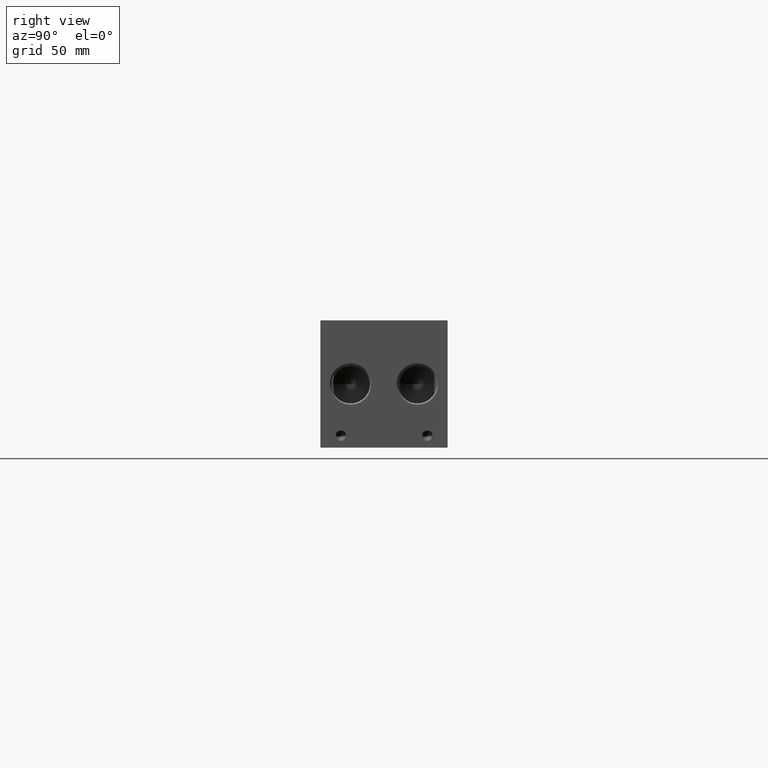
[diagram: clean part render]
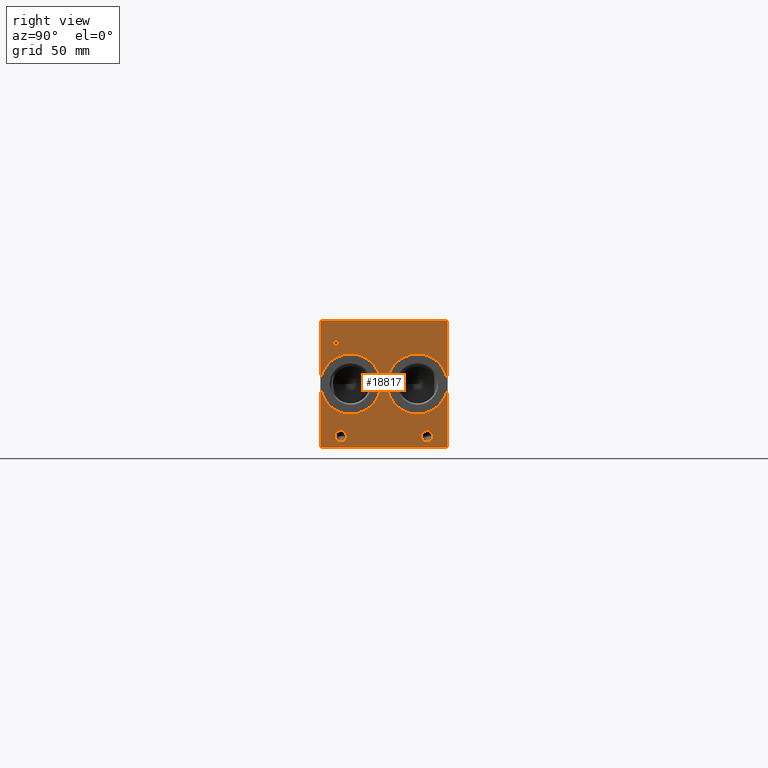
[diagram: same view with one face highlighted and labeled with its STEP entity id]
A machine part, right view. The second image highlights one B-rep face of the part: STEP entity #18817.
In plain terms, the highlighted planar face has unit normal (1, 0, 0).
Its self-contained STEP definition (entity closure, byte-faithful):
#308=CIRCLE('',#19861,3.9624);
#309=CIRCLE('',#19862,3.9624);
#310=CIRCLE('',#19863,3.9624);
#311=CIRCLE('',#19864,3.9624);
#312=CIRCLE('',#19865,21.0185);
#313=CIRCLE('',#19866,21.0185);
#314=CIRCLE('',#19867,21.0185);
#315=CIRCLE('',#19868,21.0185);
#952=FACE_BOUND('',#2953,.T.);
#953=FACE_BOUND('',#2954,.T.);
#954=FACE_BOUND('',#2955,.T.);
#955=FACE_BOUND('',#2956,.T.);
#956=FACE_BOUND('',#2957,.T.);
#957=FACE_BOUND('',#2958,.T.);
#1161=B_SPLINE_CURVE_WITH_KNOTS('',2,(#25934,#25935,#25936,#25937),
 .UNSPECIFIED.,.F.,.F.,(3,1,3),(0.,1.,2.),.UNSPECIFIED.);
#1163=B_SPLINE_CURVE_WITH_KNOTS('',2,(#25955,#25956,#25957,#25958),
 .UNSPECIFIED.,.F.,.F.,(3,1,3),(0.,1.,2.),.UNSPECIFIED.);
#1165=B_SPLINE_CURVE_WITH_KNOTS('',2,(#26004,#26005,#26006,#26007),
 .UNSPECIFIED.,.F.,.F.,(3,1,3),(0.,1.,2.),.UNSPECIFIED.);
#1167=B_SPLINE_CURVE_WITH_KNOTS('',2,(#26022,#26023,#26024,#26025),
 .UNSPECIFIED.,.F.,.F.,(3,1,3),(0.,1.,2.),.UNSPECIFIED.);
#1914=FACE_OUTER_BOUND('',#2952,.T.);
#2952=EDGE_LOOP('',(#12241,#12242,#12243,#12244));
#2953=EDGE_LOOP('',(#12245,#12246,#12247,#12248,#12249,#12250,#12251,#12252));
#2954=EDGE_LOOP('',(#12253,#12254));
#2955=EDGE_LOOP('',(#12255,#12256));
#2956=EDGE_LOOP('',(#12257,#12258));
#2957=EDGE_LOOP('',(#12259,#12260));
#2958=EDGE_LOOP('',(#12261,#12262,#12263,#12264,#12265,#12266,#12267,#12268,
#12269));
#4164=LINE('',#25784,#5795);
#4168=LINE('',#25792,#5799);
#4171=LINE('',#25798,#5802);
#4174=LINE('',#25804,#5805);
#4177=LINE('',#25810,#5808);
#4180=LINE('',#25816,#5811);
#4183=LINE('',#25822,#5814);
#4186=LINE('',#25827,#5817);
#4204=LINE('',#25967,#5835);
#4207=LINE('',#25973,#5838);
#4210=LINE('',#25979,#5841);
#4213=LINE('',#25985,#5844);
#4216=LINE('',#25991,#5847);
#4220=LINE('',#26034,#5851);
#4221=LINE('',#26036,#5852);
#4222=LINE('',#26038,#5853);
#4223=LINE('',#26039,#5854);
#5795=VECTOR('',#21281,10.);
#5799=VECTOR('',#21287,10.);
#5802=VECTOR('',#21292,10.);
#5805=VECTOR('',#21297,10.);
#5808=VECTOR('',#21302,10.);
#5811=VECTOR('',#21307,10.);
#5814=VECTOR('',#21312,10.);
#5817=VECTOR('',#21317,10.);
#5835=VECTOR('',#21345,10.);
#5838=VECTOR('',#21350,10.);
#5841=VECTOR('',#21355,10.);
#5844=VECTOR('',#21360,10.);
#5847=VECTOR('',#21365,10.);
#5851=VECTOR('',#21373,10.);
#5852=VECTOR('',#21374,10.);
#5853=VECTOR('',#21375,10.);
#5854=VECTOR('',#21376,10.);
#7426=VERTEX_POINT('',#25782);
#7427=VERTEX_POINT('',#25783);
#7430=VERTEX_POINT('',#25791);
#7432=VERTEX_POINT('',#25797);
#7434=VERTEX_POINT('',#25803);
#7436=VERTEX_POINT('',#25809);
#7438=VERTEX_POINT('',#25815);
#7440=VERTEX_POINT('',#25821);
#7456=VERTEX_POINT('',#25932);
#7457=VERTEX_POINT('',#25933);
#7460=VERTEX_POINT('',#25954);
#7462=VERTEX_POINT('',#25966);
#7464=VERTEX_POINT('',#25972);
#7466=VERTEX_POINT('',#25978);
#7468=VERTEX_POINT('',#25984);
#7470=VERTEX_POINT('',#25990);
#7472=VERTEX_POINT('',#26003);
#7474=VERTEX_POINT('',#26032);
#7475=VERTEX_POINT('',#26033);
#7476=VERTEX_POINT('',#26035);
#7477=VERTEX_POINT('',#26037);
#7478=VERTEX_POINT('',#26040);
#7479=VERTEX_POINT('',#26041);
#7480=VERTEX_POINT('',#26044);
#7481=VERTEX_POINT('',#26045);
#7482=VERTEX_POINT('',#26048);
#7483=VERTEX_POINT('',#26049);
#7484=VERTEX_POINT('',#26052);
#7485=VERTEX_POINT('',#26053);
#9357=EDGE_CURVE('',#7426,#7427,#4164,.T.);
#9361=EDGE_CURVE('',#7430,#7426,#4168,.T.);
#9364=EDGE_CURVE('',#7432,#7430,#4171,.T.);
#9367=EDGE_CURVE('',#7434,#7432,#4174,.T.);
#9370=EDGE_CURVE('',#7436,#7434,#4177,.T.);
#9373=EDGE_CURVE('',#7438,#7436,#4180,.T.);
#9376=EDGE_CURVE('',#7440,#7438,#4183,.T.);
#9379=EDGE_CURVE('',#7427,#7440,#4186,.T.);
#9402=EDGE_CURVE('',#7456,#7457,#1161,.T.);
#9406=EDGE_CURVE('',#7460,#7456,#1163,.T.);
#9409=EDGE_CURVE('',#7462,#7460,#4204,.T.);
#9412=EDGE_CURVE('',#7464,#7462,#4207,.T.);
#9415=EDGE_CURVE('',#7466,#7464,#4210,.T.);
#9418=EDGE_CURVE('',#7468,#7466,#4213,.T.);
#9421=EDGE_CURVE('',#7470,#7468,#4216,.T.);
#9424=EDGE_CURVE('',#7472,#7470,#1165,.T.);
#9427=EDGE_CURVE('',#7457,#7472,#1167,.T.);
#9429=EDGE_CURVE('',#7474,#7475,#4220,.T.);
#9430=EDGE_CURVE('',#7475,#7476,#4221,.T.);
#9431=EDGE_CURVE('',#7477,#7476,#4222,.T.);
#9432=EDGE_CURVE('',#7474,#7477,#4223,.T.);
#9433=EDGE_CURVE('',#7478,#7479,#308,.T.);
#9434=EDGE_CURVE('',#7479,#7478,#309,.T.);
#9435=EDGE_CURVE('',#7480,#7481,#310,.T.);
#9436=EDGE_CURVE('',#7481,#7480,#311,.T.);
#9437=EDGE_CURVE('',#7482,#7483,#312,.T.);
#9438=EDGE_CURVE('',#7483,#7482,#313,.T.);
#9439=EDGE_CURVE('',#7484,#7485,#314,.T.);
#9440=EDGE_CURVE('',#7485,#7484,#315,.T.);
#12241=ORIENTED_EDGE('',*,*,#9429,.T.);
#12242=ORIENTED_EDGE('',*,*,#9430,.T.);
#12243=ORIENTED_EDGE('',*,*,#9431,.F.);
#12244=ORIENTED_EDGE('',*,*,#9432,.F.);
#12245=ORIENTED_EDGE('',*,*,#9357,.T.);
#12246=ORIENTED_EDGE('',*,*,#9379,.T.);
#12247=ORIENTED_EDGE('',*,*,#9376,.T.);
#12248=ORIENTED_EDGE('',*,*,#9373,.T.);
#12249=ORIENTED_EDGE('',*,*,#9370,.T.);
#12250=ORIENTED_EDGE('',*,*,#9367,.T.);
#12251=ORIENTED_EDGE('',*,*,#9364,.T.);
#12252=ORIENTED_EDGE('',*,*,#9361,.T.);
#12253=ORIENTED_EDGE('',*,*,#9433,.T.);
#12254=ORIENTED_EDGE('',*,*,#9434,.T.);
#12255=ORIENTED_EDGE('',*,*,#9435,.T.);
#12256=ORIENTED_EDGE('',*,*,#9436,.T.);
#12257=ORIENTED_EDGE('',*,*,#9437,.T.);
#12258=ORIENTED_EDGE('',*,*,#9438,.T.);
#12259=ORIENTED_EDGE('',*,*,#9439,.T.);
#12260=ORIENTED_EDGE('',*,*,#9440,.T.);
#12261=ORIENTED_EDGE('',*,*,#9402,.T.);
#12262=ORIENTED_EDGE('',*,*,#9427,.T.);
#12263=ORIENTED_EDGE('',*,*,#9424,.T.);
#12264=ORIENTED_EDGE('',*,*,#9421,.T.);
#12265=ORIENTED_EDGE('',*,*,#9418,.T.);
#12266=ORIENTED_EDGE('',*,*,#9415,.T.);
#12267=ORIENTED_EDGE('',*,*,#9412,.T.);
#12268=ORIENTED_EDGE('',*,*,#9409,.T.);
#12269=ORIENTED_EDGE('',*,*,#9406,.T.);
#17667=PLANE('',#19860);
#18817=ADVANCED_FACE('',(#1914,#952,#953,#954,#955,#956,#957),#17667,.T.);
#19860=AXIS2_PLACEMENT_3D('',#26031,#21371,#21372);
#19861=AXIS2_PLACEMENT_3D('',#26042,#21377,#21378);
#19862=AXIS2_PLACEMENT_3D('',#26043,#21379,#21380);
#19863=AXIS2_PLACEMENT_3D('',#26046,#21381,#21382);
#19864=AXIS2_PLACEMENT_3D('',#26047,#21383,#21384);
#19865=AXIS2_PLACEMENT_3D('',#26050,#21385,#21386);
#19866=AXIS2_PLACEMENT_3D('',#26051,#21387,#21388);
#19867=AXIS2_PLACEMENT_3D('',#26054,#21389,#21390);
#19868=AXIS2_PLACEMENT_3D('',#26055,#21391,#21392);
#21281=DIRECTION('',(0.,-1.,0.));
#21287=DIRECTION('',(0.,0.,-1.));
#21292=DIRECTION('',(0.,-1.,0.));
#21297=DIRECTION('',(0.,0.,-1.));
#21302=DIRECTION('',(0.,1.,0.));
#21307=DIRECTION('',(0.,0.,1.));
#21312=DIRECTION('',(0.,-1.,0.));
#21317=DIRECTION('',(0.,0.,1.));
#21345=DIRECTION('',(0.,1.,0.));
#21350=DIRECTION('',(0.,0.,1.));
#21355=DIRECTION('',(0.,-1.,0.));
#21360=DIRECTION('',(0.,0.,-1.));
#21365=DIRECTION('',(0.,-1.,0.));
#21371=DIRECTION('center_axis',(1.,0.,0.));
#21372=DIRECTION('ref_axis',(0.,1.,0.));
#21373=DIRECTION('',(0.,1.,0.));
#21374=DIRECTION('',(0.,0.,1.));
#21375=DIRECTION('',(0.,1.,0.));
#21376=DIRECTION('',(0.,0.,1.));
#21377=DIRECTION('center_axis',(-1.,0.,0.));
#21378=DIRECTION('ref_axis',(0.,1.,0.));
#21379=DIRECTION('center_axis',(-1.,0.,0.));
#21380=DIRECTION('ref_axis',(0.,1.,0.));
#21381=DIRECTION('center_axis',(-1.,0.,0.));
#21382=DIRECTION('ref_axis',(0.,1.,0.));
#21383=DIRECTION('center_axis',(-1.,0.,0.));
#21384=DIRECTION('ref_axis',(0.,1.,0.));
#21385=DIRECTION('center_axis',(-1.,0.,0.));
#21386=DIRECTION('ref_axis',(0.,0.,-1.));
#21387=DIRECTION('center_axis',(-1.,0.,0.));
#21388=DIRECTION('ref_axis',(0.,0.,-1.));
#21389=DIRECTION('center_axis',(-1.,0.,0.));
#21390=DIRECTION('ref_axis',(0.,0.,-1.));
#21391=DIRECTION('center_axis',(-1.,0.,0.));
#21392=DIRECTION('ref_axis',(0.,0.,-1.));
#25782=CARTESIAN_POINT('',(495.3,77.137165271453,68.58));
#25783=CARTESIAN_POINT('',(495.3,76.2932430799135,68.58));
#25784=CARTESIAN_POINT('',(495.3,38.5685826357265,68.58));
#25791=CARTESIAN_POINT('',(495.3,77.137165271453,74.1787033194816));
#25792=CARTESIAN_POINT('',(495.3,77.137165271453,37.0893516597408));
#25797=CARTESIAN_POINT('',(495.3,79.2675542183881,74.1787033194816));
#25798=CARTESIAN_POINT('',(495.3,39.633777109194,74.1787033194816));
#25803=CARTESIAN_POINT('',(495.3,79.2675542183881,74.9299999046326));
#25804=CARTESIAN_POINT('',(495.3,79.2675542183881,37.4649999523163));
#25809=CARTESIAN_POINT('',(495.3,74.1628541329784,74.9299999046326));
#25810=CARTESIAN_POINT('',(495.3,37.0814270664892,74.9299999046326));
#25815=CARTESIAN_POINT('',(495.3,74.1628541329784,74.1787033194816));
#25816=CARTESIAN_POINT('',(495.3,74.1628541329784,37.0893516597408));
#25821=CARTESIAN_POINT('',(495.3,76.2932430799135,74.1787033194816));
#25822=CARTESIAN_POINT('',(495.3,38.1466215399568,74.1787033194816));
#25827=CARTESIAN_POINT('',(495.3,76.2932430799135,34.29));
#25932=CARTESIAN_POINT('',(495.3,12.2825672023594,74.5337681439707));
#25933=CARTESIAN_POINT('',(495.3,13.039009654532,73.015737372604));
#25934=CARTESIAN_POINT('Ctrl Pts',(495.3,12.2825672023594,74.5337681439707));
#25935=CARTESIAN_POINT('Ctrl Pts',(495.3,12.6376320268486,74.2919123939564));
#25936=CARTESIAN_POINT('Ctrl Pts',(495.3,13.039009654532,73.5457616758269));
#25937=CARTESIAN_POINT('Ctrl Pts',(495.3,13.039009654532,73.015737372604));
#25954=CARTESIAN_POINT('',(495.3,10.6204521543883,74.9299999046326));
#25955=CARTESIAN_POINT('Ctrl Pts',(495.3,10.6204521543883,74.9299999046326));
#25956=CARTESIAN_POINT('Ctrl Pts',(495.3,11.1864975267624,74.9299999046326));
#25957=CARTESIAN_POINT('Ctrl Pts',(495.3,11.978961048086,74.7447486918556));
#25958=CARTESIAN_POINT('Ctrl Pts',(495.3,12.2825672023594,74.5337681439707));
#25966=CARTESIAN_POINT('',(495.3,9.02523337769779,74.9299999046326));
#25967=CARTESIAN_POINT('',(495.3,4.51261668884889,74.9299999046326));
#25972=CARTESIAN_POINT('',(495.3,9.02523337769779,68.58));
#25973=CARTESIAN_POINT('',(495.3,9.02523337769779,34.29));
#25978=CARTESIAN_POINT('',(495.3,9.86915556923729,68.58));
#25979=CARTESIAN_POINT('',(495.3,4.93457778461864,68.58));
#25984=CARTESIAN_POINT('',(495.3,9.86915556923729,70.9470988299279));
#25985=CARTESIAN_POINT('',(495.3,9.86915556923729,35.4735494149639));
#25990=CARTESIAN_POINT('',(495.3,10.5844310852372,70.9470988299279));
#25991=CARTESIAN_POINT('',(495.3,5.29221554261861,70.9470988299279));
#26003=CARTESIAN_POINT('',(495.3,12.4832560162011,71.6057698086904));
#26004=CARTESIAN_POINT('Ctrl Pts',(495.3,12.4832560162011,71.6057698086904));
#26005=CARTESIAN_POINT('Ctrl Pts',(495.3,12.1539205268198,71.2815801863307));
#26006=CARTESIAN_POINT('Ctrl Pts',(495.3,11.2636855320861,70.9470988299279));
#26007=CARTESIAN_POINT('Ctrl Pts',(495.3,10.5844310852372,70.9470988299279));
#26022=CARTESIAN_POINT('Ctrl Pts',(495.3,13.039009654532,73.015737372604));
#26023=CARTESIAN_POINT('Ctrl Pts',(495.3,13.039009654532,72.6040680108774));
#26024=CARTESIAN_POINT('Ctrl Pts',(495.3,12.7456952343018,71.8630631597695));
#26025=CARTESIAN_POINT('Ctrl Pts',(495.3,12.4832560162011,71.6057698086904));
#26031=CARTESIAN_POINT('Origin',(495.3,0.,0.));
#26032=CARTESIAN_POINT('',(495.3,0.,0.));
#26033=CARTESIAN_POINT('',(495.3,88.9,0.));
#26034=CARTESIAN_POINT('',(495.3,0.,0.));
#26035=CARTESIAN_POINT('',(495.3,88.9,88.9));
#26036=CARTESIAN_POINT('',(495.3,88.9,0.));
#26037=CARTESIAN_POINT('',(495.3,0.,88.9));
#26038=CARTESIAN_POINT('',(495.3,0.,88.9));
#26039=CARTESIAN_POINT('',(495.3,0.,0.));
#26040=CARTESIAN_POINT('',(495.3,78.5876,7.9248));
#26041=CARTESIAN_POINT('',(495.3,70.6628,7.9248));
#26042=CARTESIAN_POINT('Origin',(495.3,74.6252,7.9248));
#26043=CARTESIAN_POINT('Origin',(495.3,74.6252,7.9248));
#26044=CARTESIAN_POINT('',(495.3,18.2372,7.9248));
#26045=CARTESIAN_POINT('',(495.3,10.3124,7.9248));
#26046=CARTESIAN_POINT('Origin',(495.3,14.2748,7.9248));
#26047=CARTESIAN_POINT('Origin',(495.3,14.2748,7.9248));
#26048=CARTESIAN_POINT('',(495.3,21.082,23.4315));
#26049=CARTESIAN_POINT('',(495.3,21.082,65.4685));
#26050=CARTESIAN_POINT('Origin',(495.3,21.082,44.45));
#26051=CARTESIAN_POINT('Origin',(495.3,21.082,44.45));
#26052=CARTESIAN_POINT('',(495.3,67.818,23.4315));
#26053=CARTESIAN_POINT('',(495.3,67.818,65.4685));
#26054=CARTESIAN_POINT('Origin',(495.3,67.818,44.45));
#26055=CARTESIAN_POINT('Origin',(495.3,67.818,44.45));